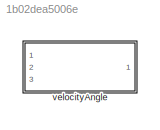
MODEL slx_1b02dea5006e
KIND library
CONFIG AbsTol = auto
CONFIG EnableMultiTasking = off
CONFIG FixedStep = auto
CONFIG MaxStep = auto
CONFIG MinStep = auto
CONFIG RelTol = 1e-3
CONFIG SampleTimeConstraint = Unconstrained
CONFIG SolverName = VariableStepAuto
CONFIG StartTime = 0.0
CONFIG StopTime = 10.0
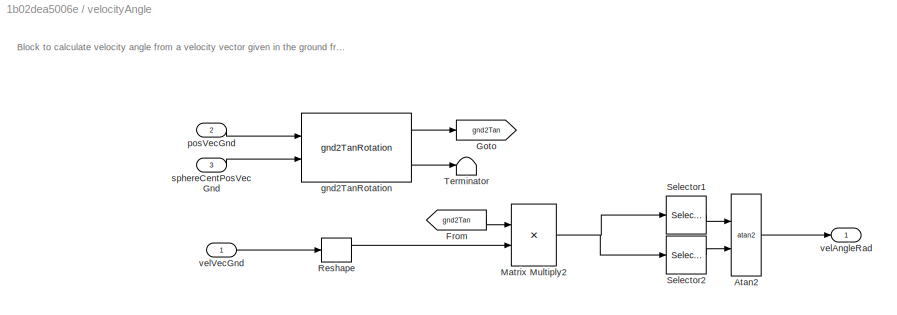
BLOCK [SubSystem] velocityAngle
  Ports = [3, 1]
  RequestExecContextInheritance = off
BLOCK [Trigonometry] velocityAngle/Atan2
  Operator = atan2
  Ports = [2, 1]
BLOCK [From] velocityAngle/From
  GotoTag = gnd2Tan
BLOCK [Goto] velocityAngle/Goto
  GotoTag = gnd2Tan
BLOCK [Product] velocityAngle/Matrix Multiply2
  Multiplication = Matrix(*)
  Ports = [2, 1]
BLOCK [Reshape] velocityAngle/Reshape
  OutputDimensionality = Column vector (2-D)
  Ports = [1, 1]
BLOCK [Selector] velocityAngle/Selector1
  IndexOptions = Index vector (dialog)
  Indices = 2
  InputPortWidth = 3
  OutputSizes = 1
  Ports = [1, 1]
BLOCK [Selector] velocityAngle/Selector2
  IndexOptions = Index vector (dialog)
  Indices = 1
  InputPortWidth = 3
  OutputSizes = 1
  Ports = [1, 1]
BLOCK [Terminator] velocityAngle/Terminator
BLOCK [Reference] velocityAngle/gnd2TanRotation  REF=gnd2TanRotation_ul/gnd2TanRotation
  Ports = [2, 2]
  SourceBlock = gnd2TanRotation_ul/gnd2TanRotation
  SourceType = SubSystem
BLOCK [Inport] velocityAngle/posVecGnd
  Port = 2
BLOCK [Inport] velocityAngle/sphereCentPosVecGnd
  Port = 3
BLOCK [Outport] velocityAngle/velAngleRad
  VectorParamsAs1DForOutWhenUnconnected = off
BLOCK [Inport] velocityAngle/velVecGnd
ANNOTATION velocityAngle: Block to calculate velocity angle from a velocity vector given in the ground frame
LINE velocityAngle/Atan2:1 -> velocityAngle/velAngleRad:1
LINE velocityAngle/From:1 -> velocityAngle/Matrix Multiply2:1
NET velocityAngle/Matrix Multiply2:1 -> velocityAngle/Selector1:1, velocityAngle/Selector2:1
LINE velocityAngle/Reshape:1 -> velocityAngle/Matrix Multiply2:2
LINE velocityAngle/Selector1:1 -> velocityAngle/Atan2:1
LINE velocityAngle/Selector2:1 -> velocityAngle/Atan2:2
LINE velocityAngle/gnd2TanRotation:1 -> velocityAngle/Goto:1
LINE velocityAngle/gnd2TanRotation:2 -> velocityAngle/Terminator:1
LINE velocityAngle/posVecGnd:1 -> velocityAngle/gnd2TanRotation:1
LINE velocityAngle/sphereCentPosVecGnd:1 -> velocityAngle/gnd2TanRotation:2
LINE velocityAngle/velVecGnd:1 -> velocityAngle/Reshape:1
note: NET lines group one-source signal fan-out (src -> all destinations, sorted); 1:1 wires keep LINE
